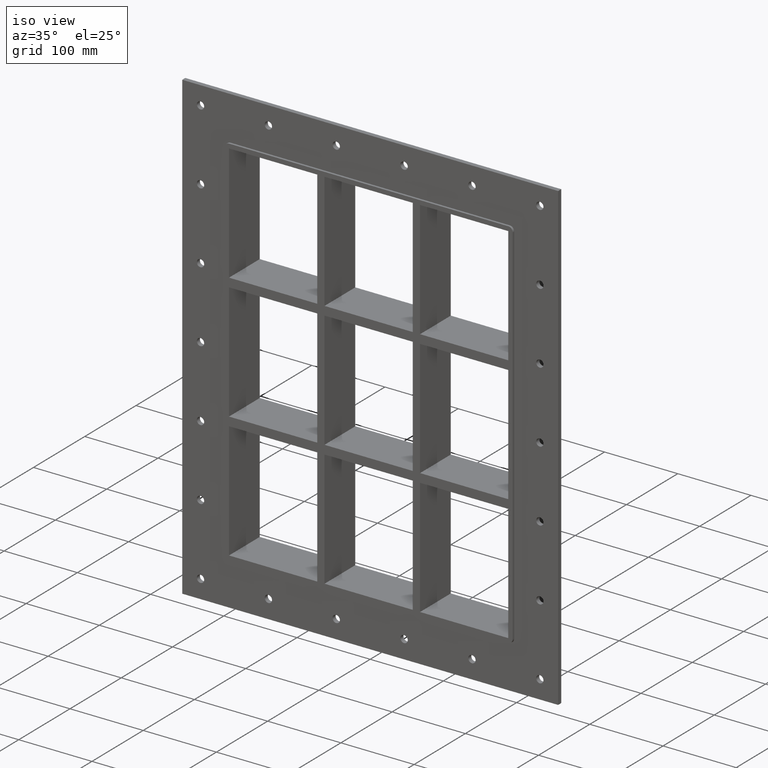
[diagram: clean part render]
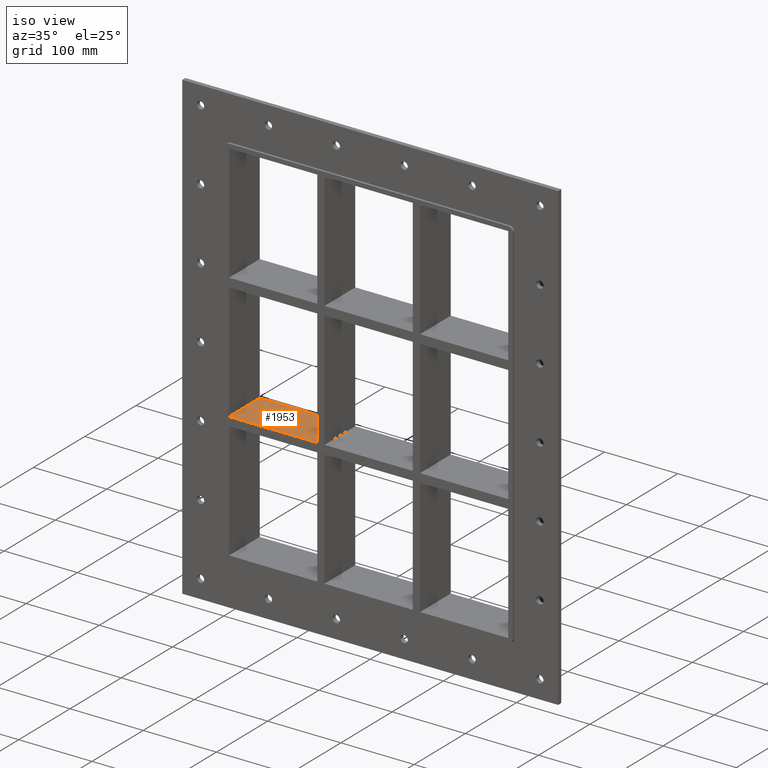
[diagram: same view with one face highlighted and labeled with its STEP entity id]
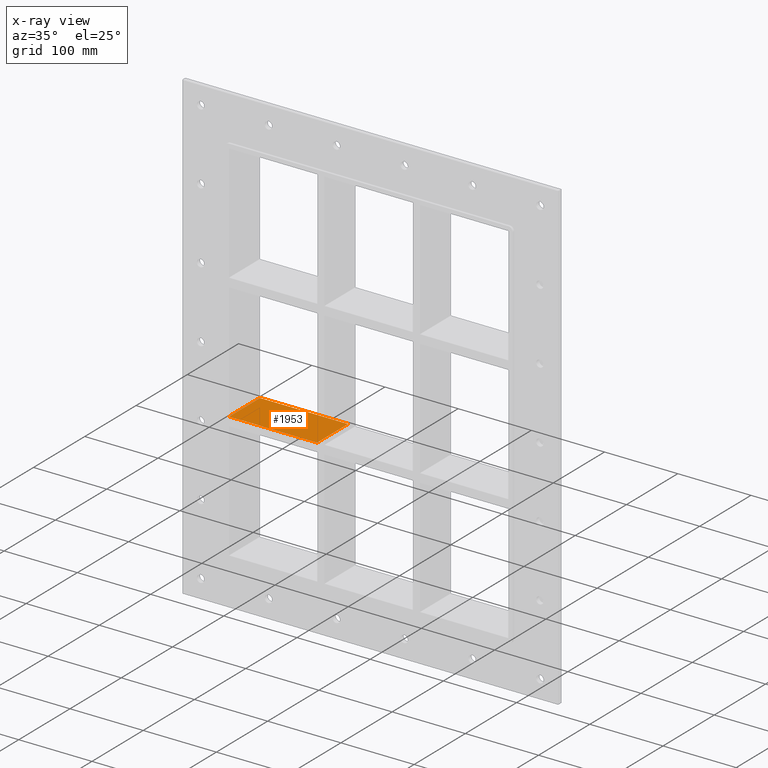
[diagram: x-ray of the same camera — body ghosted, the highlighted face saturated]
A machine part, iso view. The second image highlights one B-rep face of the part: STEP entity #1953.
The next image is the same camera in x-ray: the body ghosted, the highlighted face saturated — about 0% of this face is hidden behind the body in this view.
In plain terms, the highlighted planar face has unit normal (0, 0, 1).
Its self-contained STEP definition (entity closure, byte-faithful):
#1116=CARTESIAN_POINT('',(-70.250000000001393,57.0,-79.749999999999943));
#1117=VERTEX_POINT('',#1116);
#1124=CARTESIAN_POINT('',(-70.250000000001393,-3.0,-79.749999999999943));
#1125=VERTEX_POINT('',#1124);
#1126=CARTESIAN_POINT('',(-70.250000000001393,57.0,-79.749999999999943));
#1127=DIRECTION('',(0.0,-1.0,0.0));
#1128=VECTOR('',#1127,60.0);
#1129=LINE('',#1126,#1128);
#1130=EDGE_CURVE('',#1117,#1125,#1129,.T.);
#1247=CARTESIAN_POINT('',(-190.74999999999977,57.0,-79.749999999999943));
#1248=VERTEX_POINT('',#1247);
#1255=CARTESIAN_POINT('',(-190.74999999999977,57.0,-79.749999999999943));
#1256=DIRECTION('',(1.0,0.0,0.0));
#1257=VECTOR('',#1256,120.49999999999839);
#1258=LINE('',#1255,#1257);
#1259=EDGE_CURVE('',#1248,#1117,#1258,.T.);
#1730=CARTESIAN_POINT('',(-190.74999999999977,-3.0,-79.749999999999943));
#1731=VERTEX_POINT('',#1730);
#1732=CARTESIAN_POINT('',(-190.74999999999977,-3.0,-79.749999999999943));
#1733=DIRECTION('',(1.0,0.0,0.0));
#1734=VECTOR('',#1733,120.49999999999839);
#1735=LINE('',#1732,#1734);
#1736=EDGE_CURVE('',#1731,#1125,#1735,.T.);
#1937=CARTESIAN_POINT('',(-190.74999999999977,-3.0,-79.749999999999943));
#1938=DIRECTION('',(0.0,0.0,1.0));
#1939=DIRECTION('',(1.0,0.0,0.0));
#1940=AXIS2_PLACEMENT_3D('',#1937,#1938,#1939);
#1941=PLANE('',#1940);
#1942=ORIENTED_EDGE('',*,*,#1130,.F.);
#1943=ORIENTED_EDGE('',*,*,#1259,.F.);
#1944=CARTESIAN_POINT('',(-190.75000000000003,-3.0,-79.749999999999943));
#1945=DIRECTION('',(0.0,1.0,0.0));
#1946=VECTOR('',#1945,60.000000000000007);
#1947=LINE('',#1944,#1946);
#1948=EDGE_CURVE('',#1731,#1248,#1947,.T.);
#1949=ORIENTED_EDGE('',*,*,#1948,.F.);
#1950=ORIENTED_EDGE('',*,*,#1736,.T.);
#1951=EDGE_LOOP('',(#1942,#1943,#1949,#1950));
#1952=FACE_OUTER_BOUND('',#1951,.T.);
#1953=ADVANCED_FACE('',(#1952),#1941,.T.);